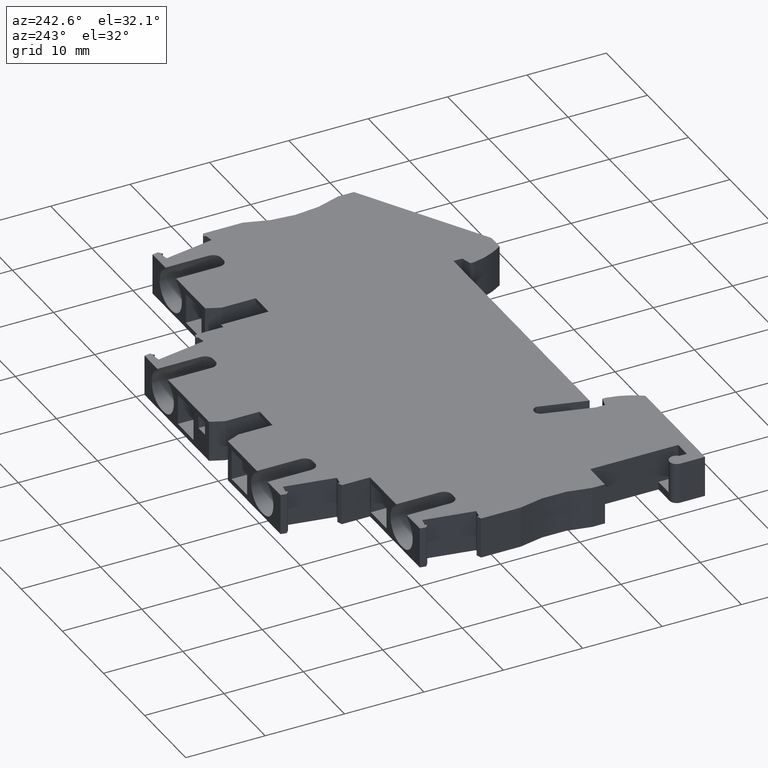
[diagram: clean part render]
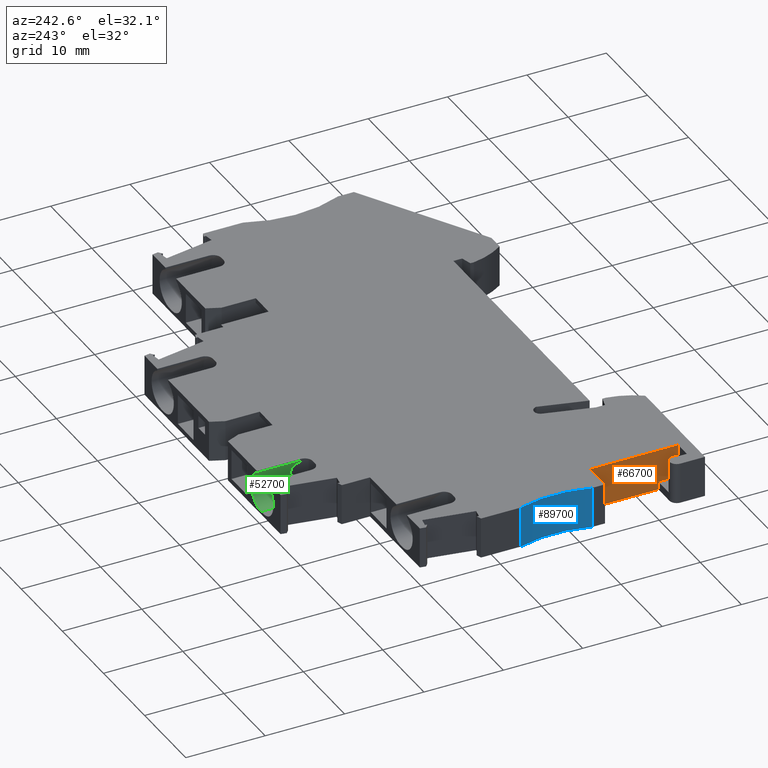
[diagram: same view with three faces highlighted in distinct colors, each labeled with its STEP entity id]
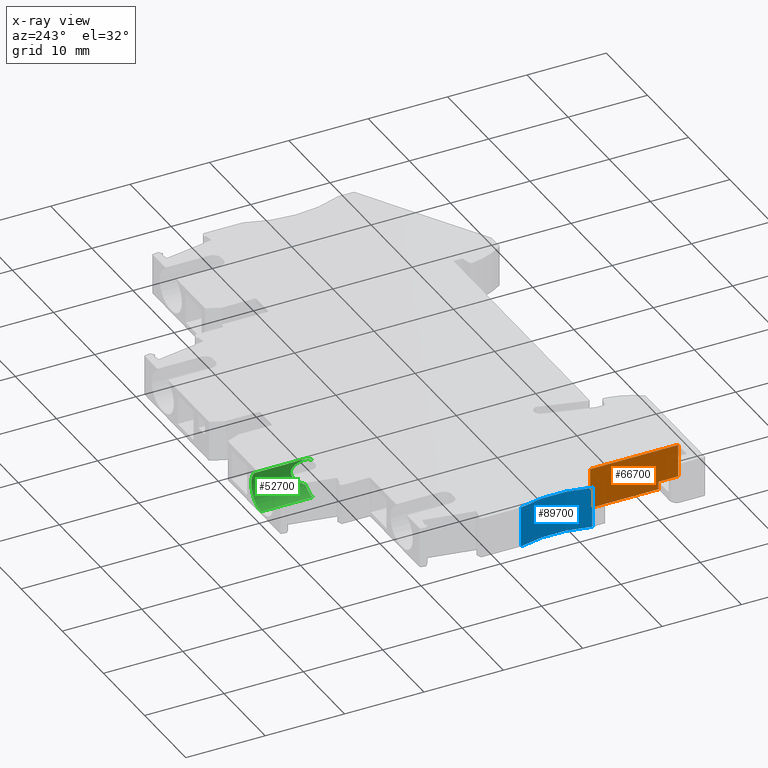
[diagram: x-ray of the same camera — body ghosted, the three highlighted faces saturated]
A machine part, auxiliary view with three faces highlighted in distinct colors.
The next image is the same camera in x-ray (body ghosted, the three faces saturated) — at least one of them is partly hidden behind the body in this view.
Their STEP definitions:

[orange] entity #66700 — the highlighted planar face has unit normal (1, -0, 0).
#5110=CARTESIAN_POINT('',(138.918635451691,9.09671382217083,48.52));
#5120=VERTEX_POINT('',#5110);
#5150=CARTESIAN_POINT('',(138.918635451691,-15.1764489999999,48.52));
#5160=DIRECTION('',(6.93889390390723E-17,1.,0.));
#5170=VECTOR('',#5160,1.);
#5180=LINE('',#5150,#5170);
#5190=CARTESIAN_POINT('',(138.918635451691,0.496713822169898,48.52));
#5200=VERTEX_POINT('',#5190);
#5210=EDGE_CURVE('',#5200,#5120,#5180,.T.);
#65280=CARTESIAN_POINT('',(138.918635451691,0.496713822169898,53.67));
#65290=DIRECTION('',(0.,0.,-1.));
#65300=VECTOR('',#65290,1.);
#65310=LINE('',#65280,#65300);
#65320=CARTESIAN_POINT('',(138.918635451691,0.496713822169898,49.52));
#65330=VERTEX_POINT('',#65320);
#65340=EDGE_CURVE('',#65330,#5200,#65310,.T.);
#65710=CARTESIAN_POINT('',(138.918635451691,-2.00328617783005,49.52));
#65720=VERTEX_POINT('',#65710);
#65910=CARTESIAN_POINT('',(138.918635451691,2.99671382217021,49.52));
#65920=DIRECTION('',(6.93889390390723E-17,1.,0.));
#65930=VECTOR('',#65920,1.);
#65940=LINE('',#65910,#65930);
#65950=EDGE_CURVE('',#65720,#65330,#65940,.T.);
#66120=CARTESIAN_POINT('',(138.918635451691,-2.00328617783005,53.67));
#66130=DIRECTION('',(0.,0.,-1.));
#66140=VECTOR('',#66130,1.);
#66150=LINE('',#66120,#66140);
#66160=CARTESIAN_POINT('',(138.918635451691,-2.00328617783005,53.67));
#66170=VERTEX_POINT('',#66160);
#66180=EDGE_CURVE('',#66170,#65720,#66150,.T.);
#66450=CARTESIAN_POINT('',(138.918635451691,-1.00328617783004,53.67));
#66460=DIRECTION('',(1.,-6.93889390390723E-17,0.));
#66470=DIRECTION('',(-6.93889390390723E-17,-1.,0.));
#66480=AXIS2_PLACEMENT_3D('',#66450,#66460,#66470);
#66490=PLANE('',#66480);
#66500=CARTESIAN_POINT('',(138.918635451691,-15.1764489999999,53.67));
#66510=DIRECTION('',(6.93889390390723E-17,1.,0.));
#66520=VECTOR('',#66510,1.);
#66530=LINE('',#66500,#66520);
#66540=CARTESIAN_POINT('',(138.918635451691,9.09671382217083,53.67));
#66550=VERTEX_POINT('',#66540);
#66560=EDGE_CURVE('',#66170,#66550,#66530,.T.);
#66570=ORIENTED_EDGE('',*,*,#66560,.T.);
#66580=ORIENTED_EDGE('',*,*,#66180,.F.);
#66590=ORIENTED_EDGE('',*,*,#65950,.F.);
#66600=ORIENTED_EDGE('',*,*,#65340,.F.);
#66610=ORIENTED_EDGE('',*,*,#5210,.F.);
#66620=CARTESIAN_POINT('',(138.918635451691,9.09671382217083,53.67));
#66630=DIRECTION('',(0.,0.,-1.));
#66640=VECTOR('',#66630,1.);
#66650=LINE('',#66620,#66640);
#66660=EDGE_CURVE('',#66550,#5120,#66650,.T.);
#66670=ORIENTED_EDGE('',*,*,#66660,.T.);
#66680=EDGE_LOOP('',(#66670,#66610,#66600,#66590,#66580,#66570));
#66690=FACE_OUTER_BOUND('',#66680,.T.);
#66700=ADVANCED_FACE('',(#66690),#66490,.F.);

[blue] entity #89700 — the highlighted cylindrical surface (partial cylindrical patch) has radius 15 mm, axis along (0, 0, 1).
#4860=CARTESIAN_POINT('',(135.318635774393,19.6967137777627,48.52));
#4870=VERTEX_POINT('',#4860);
#4900=CARTESIAN_POINT('',(121.009547739174,15.1967138221689,48.52));
#4910=DIRECTION('',(0.,0.,1.));
#4920=DIRECTION('',(1.,-6.93889390390723E-17,0.));
#4930=AXIS2_PLACEMENT_3D('',#4900,#4910,#4920);
#4940=CIRCLE('',#4930,15.);
#4950=CARTESIAN_POINT('',(135.318635760428,10.696713822169,48.52));
#4960=VERTEX_POINT('',#4950);
#4970=EDGE_CURVE('',#4960,#4870,#4940,.T.);
#66890=CARTESIAN_POINT('',(135.318635760428,10.696713822169,53.67));
#66900=VERTEX_POINT('',#66890);
#67000=CARTESIAN_POINT('',(135.318635760428,10.696713822169,53.67));
#67010=DIRECTION('',(0.,0.,1.));
#67020=VECTOR('',#67010,1.);
#67030=LINE('',#67000,#67020);
#67040=EDGE_CURVE('',#4960,#66900,#67030,.T.);
#67250=CARTESIAN_POINT('',(135.318635774393,19.6967137777627,53.67));
#67260=VERTEX_POINT('',#67250);
#67310=CARTESIAN_POINT('',(135.318635774393,19.6967137777627,53.67));
#67320=DIRECTION('',(0.,0.,1.));
#67330=VECTOR('',#67320,1.);
#67340=LINE('',#67310,#67330);
#67350=EDGE_CURVE('',#4870,#67260,#67340,.T.);
#89530=CARTESIAN_POINT('',(121.009547739174,15.1967138221689,53.67));
#89540=DIRECTION('',(0.,0.,1.));
#89550=DIRECTION('',(1.,-6.93889390390723E-17,0.));
#89560=AXIS2_PLACEMENT_3D('',#89530,#89540,#89550);
#89570=CYLINDRICAL_SURFACE('',#89560,15.);
#89580=CARTESIAN_POINT('',(121.009547739174,15.1967138221689,53.67));
#89590=DIRECTION('',(0.,0.,1.));
#89600=DIRECTION('',(1.,-6.93889390390723E-17,0.));
#89610=AXIS2_PLACEMENT_3D('',#89580,#89590,#89600);
#89620=CIRCLE('',#89610,15.);
#89630=EDGE_CURVE('',#66900,#67260,#89620,.T.);
#89640=ORIENTED_EDGE('',*,*,#89630,.T.);
#89650=ORIENTED_EDGE('',*,*,#67040,.T.);
#89660=ORIENTED_EDGE('',*,*,#4970,.F.);
#89670=ORIENTED_EDGE('',*,*,#67350,.F.);
#89680=EDGE_LOOP('',(#89670,#89660,#89650,#89640));
#89690=FACE_OUTER_BOUND('',#89680,.T.);
#89700=ADVANCED_FACE('',(#89690),#89570,.F.);

[green] entity #52700 — the highlighted cylindrical surface (edge-blend (fillet) strip) has radius 2.4 mm, axis along (-0, -1, 0).
#51160=CARTESIAN_POINT('',(154.743635451665,44.501017822169,51.27));
#51170=DIRECTION('',(-1.17239551400417E-13,-1.,0.));
#51180=DIRECTION('',(-1.,1.17239551400417E-13,0.));
#51190=AXIS2_PLACEMENT_3D('',#51160,#51170,#51180);
#51200=CYLINDRICAL_SURFACE('',#51190,2.4);
#51210=CARTESIAN_POINT('',(154.743635451665,35.8467138221698,51.27));
#51220=DIRECTION('',(-8.67361737981714E-16,-1.,-1.38777878079272E-17));
#51230=DIRECTION('',(-1.,8.67361737981714E-16,1.20370621524251E-32));
#51240=AXIS2_PLACEMENT_3D('',#51210,#51220,#51230);
#51250=CIRCLE('',#51240,2.40000000000014);
#51260=CARTESIAN_POINT('',(156.43152076095,35.8467138221698,
52.9761779457901));
#51270=VERTEX_POINT('',#51260);
#51280=CARTESIAN_POINT('',(154.743635451665,35.8467138221695,53.67));
#51290=VERTEX_POINT('',#51280);
#51300=EDGE_CURVE('',#51270,#51290,#51250,.T.);
#51310=ORIENTED_EDGE('',*,*,#51300,.T.);
#51320=CARTESIAN_POINT('',(154.743635451665,32.2270320953817,51.27));
#51330=DIRECTION('',(0.906307787036651,-0.422618261740698,0.));
#51340=DIRECTION('',(-0.422618261740698,-0.906307787036651,
-3.0624889262629E-17));
#51350=AXIS2_PLACEMENT_3D('',#51320,#51330,#51340);
#51360=ELLIPSE('',#51350,5.67888379956604,2.4);
#51370=CARTESIAN_POINT('',(156.431520760951,35.8467138221698,
49.5638220542103));
#51380=VERTEX_POINT('',#51370);
#51390=EDGE_CURVE('',#51380,#51270,#51360,.T.);
#51400=ORIENTED_EDGE('',*,*,#51390,.T.);
#51410=CARTESIAN_POINT('',(154.743635451665,35.8467138221698,51.27));
#51420=DIRECTION('',(-8.67361737981714E-16,-1.,-1.38777878079272E-17));
#51430=DIRECTION('',(-1.,8.67361737981714E-16,1.20370621524251E-32));
#51440=AXIS2_PLACEMENT_3D('',#51410,#51420,#51430);
#51450=CIRCLE('',#51440,2.40000000000014);
#51460=CARTESIAN_POINT('',(154.743635451665,35.8467138221695,48.87));
#51470=VERTEX_POINT('',#51460);
#51480=EDGE_CURVE('',#51470,#51380,#51450,.T.);
#51490=ORIENTED_EDGE('',*,*,#51480,.T.);
#51500=CARTESIAN_POINT('',(154.743635451666,44.501017822169,48.87));
#51510=DIRECTION('',(-1.17239551400417E-13,-1.,-1.38777878145543E-17));
#51520=VECTOR('',#51510,1.);
#51530=LINE('',#51500,#51520);
#51540=CARTESIAN_POINT('',(154.743635451666,42.3467138221681,48.87));
#51550=VERTEX_POINT('',#51540);
#51560=EDGE_CURVE('',#51550,#51470,#51530,.T.);
#51570=ORIENTED_EDGE('',*,*,#51560,.T.);
#51580=CARTESIAN_POINT('',(154.743635451665,42.3467138221681,51.27));
#51590=DIRECTION('',(1.17239551400417E-13,1.,0.));
#51600=DIRECTION('',(-1.,1.17239551400417E-13,0.));
#51610=AXIS2_PLACEMENT_3D('',#51580,#51590,#51600);
#51620=CIRCLE('',#51610,2.4);
#51630=CARTESIAN_POINT('',(155.743635451665,42.346713822168,
53.4517424229271));
#51640=VERTEX_POINT('',#51630);
#51650=EDGE_CURVE('',#51640,#51550,#51620,.T.);
#51660=ORIENTED_EDGE('',*,*,#51650,.T.);
#51670=CARTESIAN_POINT('',(155.743635451665,44.5010178221691,
53.4517424229274));
#51680=DIRECTION('',(-1.73472347596343E-15,-1.,-2.77555756158543E-17));
#51690=VECTOR('',#51680,1.);
#51700=LINE('',#51670,#51690);
#51710=CARTESIAN_POINT('',(155.743635451665,36.8467138221695,
53.4517424229274));
#51720=VERTEX_POINT('',#51710);
#51730=EDGE_CURVE('',#51640,#51720,#51700,.T.);
#51740=ORIENTED_EDGE('',*,*,#51730,.F.);
#51750=CARTESIAN_POINT('',(154.743635451665,36.8467138221694,53.67));
#51760=DIRECTION('',(0.,0.,1.));
#51770=DIRECTION('',(1.,0.,0.));
#51780=AXIS2_PLACEMENT_3D('',#51750,#51760,#51770);
#51790=CYLINDRICAL_SURFACE('',#51780,1.);
#51800=CARTESIAN_POINT('',(154.743635451665,44.5010178221691,51.27));
#51810=DIRECTION('',(-1.73472347596343E-15,-1.,-2.77555756158543E-17));
#51820=DIRECTION('',(-1.,1.73472347596345E-15,-1.15490950136632E-13));
#51830=AXIS2_PLACEMENT_3D('',#51800,#51810,#51820);
#51840=CYLINDRICAL_SURFACE('',#51830,2.4);
#51850=CARTESIAN_POINT('',(154.743635451664,35.8467138221694,53.67));
#51860=CARTESIAN_POINT('',(154.760156884749,35.8467138221694,53.67));
#51870=CARTESIAN_POINT('',(154.776669937245,35.8471235838915,
53.6698291800724));
#51880=CARTESIAN_POINT('',(154.79313976741,35.8479399124568,
53.6694893879163));
#51890=CARTESIAN_POINT('',(154.809609328791,35.8487562276998,
53.6691496013055));
#51900=CARTESIAN_POINT('',(154.826075702635,35.8499810679911,
53.6686400266826));
#51910=CARTESIAN_POINT('',(154.842504754398,35.8516133945858,
53.6679626479529));
#51920=CARTESIAN_POINT('',(154.858933777927,35.8532457183754,
53.6672852703873));
#51930=CARTESIAN_POINT('',(154.87532511371,35.8552855018436,
53.6664401028));
#51940=CARTESIAN_POINT('',(154.89164432527,35.8577277892377,
53.665431771797));
#51950=CARTESIAN_POINT('',(154.907963542039,35.8601700774113,
53.6644234404721));
#51960=CARTESIAN_POINT('',(154.924210280177,35.8630148124851,
53.6632519751285));
#51970=CARTESIAN_POINT('',(154.940351006814,35.8662532210424,
53.661924536929));
#51980=CARTESIAN_POINT('',(154.956497128741,35.8694927120884,
53.6605966550124));
#51990=CARTESIAN_POINT('',(154.972512547157,35.8731198876311,
53.6591152427836));
#52000=CARTESIAN_POINT('',(154.988440534368,35.8771415084752,
53.657482035845));
#52010=CARTESIAN_POINT('',(155.004369480411,35.8811633714123,
53.6558487305909));
#52020=CARTESIAN_POINT('',(155.020204958533,35.8855794703683,
53.654063736291));
#52030=CARTESIAN_POINT('',(155.035917190215,35.8903815654145,
53.652135887247));
#52040=CARTESIAN_POINT('',(155.051629396176,35.8951836525994,
53.6502080413591));
#52050=CARTESIAN_POINT('',(155.067218078864,35.9003716591885,
53.6481373803281));
#52060=CARTESIAN_POINT('',(155.082653922186,35.9059341047828,
53.6459348637213));
#52070=CARTESIAN_POINT('',(155.098089764844,35.911496550138,
53.6437323472091));
#52080=CARTESIAN_POINT('',(155.113372508668,35.9174333383913,
53.6413980240069));
#52090=CARTESIAN_POINT('',(155.128474195386,35.9237299971046,
53.6389447315908));
#52100=CARTESIAN_POINT('',(155.143575903959,35.930026664931,
53.636491435624));
#52110=CARTESIAN_POINT('',(155.158496320103,35.9366830928664,
53.6339192256293));
#52120=CARTESIAN_POINT('',(155.173209596391,35.943682231259,
53.631242481022));
#52130=CARTESIAN_POINT('',(155.187922331244,35.9506811120896,
53.6285658349165));
#52140=CARTESIAN_POINT('',(155.202419566706,35.958016911356,
53.6257867440488));
#52150=CARTESIAN_POINT('',(155.216762828779,35.9657197898258,
53.6229025659865));
#52160=CARTESIAN_POINT('',(155.245438194515,35.9811195542742,
53.6171364536218));
#52170=CARTESIAN_POINT('',(155.273386682759,35.9979360939353,
53.6109691613471));
#52180=CARTESIAN_POINT('',(155.300430665412,36.0160640223417,
53.6045190275403));
#52190=CARTESIAN_POINT('',(155.327474482828,36.0341918399873,
53.5980689331436));
#52200=CARTESIAN_POINT('',(155.353609246036,36.0536280747606,
53.5913374690135));
#52210=CARTESIAN_POINT('',(155.378676526955,36.0742354517953,
53.5844595120015));
#52220=CARTESIAN_POINT('',(155.403744005275,36.0948429911095,
53.5775815008268));
#52230=CARTESIAN_POINT('',(155.427740334169,36.1166183553183,
53.5705585460432));
#52240=CARTESIAN_POINT('',(155.450538147453,36.1394030144706,
53.5635319005169));
#52250=CARTESIAN_POINT('',(155.473333761347,36.1621854755031,
53.5565059328769));
#52260=CARTESIAN_POINT('',(155.495110135297,36.1861558156452,
53.5494208324382));
#52270=CARTESIAN_POINT('',(155.515714150973,36.2111868895578,
53.5424204017029));
#52280=CARTESIAN_POINT('',(155.536317990912,36.2362177499738,
53.5354200306761));
#52290=CARTESIAN_POINT('',(155.555746406249,36.2623058809807,
53.528505880485));
#52300=CARTESIAN_POINT('',(155.57386758062,36.2892960147299,
53.5218247294254));
#52310=CARTESIAN_POINT('',(155.591988848248,36.3162862873798,
53.5151435439823));
#52320=CARTESIAN_POINT('',(155.608800262459,36.3441745109321,
53.5086969213532));
#52330=CARTESIAN_POINT('',(155.624200358253,36.3727882528184,
53.5026229966759));
#52340=CARTESIAN_POINT('',(155.631904032613,36.387101861815,
53.4995846040304));
#52350=CARTESIAN_POINT('',(155.639239614574,36.4015645138109,
53.4966455302614));
#52360=CARTESIAN_POINT('',(155.646243395418,36.4162502350073,
53.4938028014808));
#52370=CARTESIAN_POINT('',(155.653248084492,36.4309378606047,
53.4909597040635));
#52380=CARTESIAN_POINT('',(155.659916599928,36.4458438724246,
53.4882145144064));
#52390=CARTESIAN_POINT('',(155.666230275017,36.4609434346021,
53.485585428713));
#52400=CARTESIAN_POINT('',(155.6725439311,36.4760429513269,
53.4829563509336));
#52410=CARTESIAN_POINT('',(155.678502630154,36.4913357927839,
53.4804434488256));
#52420=CARTESIAN_POINT('',(155.684089992393,36.5067943363732,
53.4780636894857));
#52430=CARTESIAN_POINT('',(155.689677346213,36.5222528566703,
53.4756839337316));
#52440=CARTESIAN_POINT('',(155.694893255493,36.5378768181779,
53.4734373898217));
#52450=CARTESIAN_POINT('',(155.699724183706,36.5536364664034,
53.4713392143112));
#52460=CARTESIAN_POINT('',(155.704555112281,36.5693961158081,
53.4692410386437));
#52470=CARTESIAN_POINT('',(155.709000966423,36.5852911588895,
53.4672912934101));
#52480=CARTESIAN_POINT('',(155.71305146199,36.6012905165835,
53.4655028123248));
#52490=CARTESIAN_POINT('',(155.717101964904,36.6172899032991,
53.4637143279954));
#52500=CARTESIAN_POINT('',(155.720757036551,36.6333932863067,
53.4620871580589));
#52510=CARTESIAN_POINT('',(155.724009878263,36.6495692466104,
53.4606314120988));
#52520=CARTESIAN_POINT('',(155.727262732279,36.6657452680993,
53.4591756606323));
#52530=CARTESIAN_POINT('',(155.730113310887,36.6819935348409,
53.4578913670179));
#52540=CARTESIAN_POINT('',(155.732558314378,36.6982834627348,
53.4567856711629));
#52550=CARTESIAN_POINT('',(155.735002038377,36.7145648659571,
53.4556805539288));
#52560=CARTESIAN_POINT('',(155.737045368705,36.7309118065182,
53.4547517010195));
#52570=CARTESIAN_POINT('',(155.738688010922,36.7473639136872,
53.4540032976891));
#52580=CARTESIAN_POINT('',(155.740330063121,36.7638101114547,
53.4532551631763));
#52590=CARTESIAN_POINT('',(155.741567942573,36.7803360340741,
53.4526890684409));
#52600=CARTESIAN_POINT('',(155.742394302707,36.7969066192314,
53.4523108755322));
#52610=CARTESIAN_POINT('',(155.743220659911,36.8134771456505,
53.4519326839641));
#52620=CARTESIAN_POINT('',(155.743635451665,36.8300919034459,
53.4517424229275));
#52630=CARTESIAN_POINT('',(155.743635451665,36.8467138221693,
53.4517424229275));
#52640=B_SPLINE_CURVE_WITH_KNOTS('',3,(#51850,#51860,#51870,#51880,
#51890,#51900,#51910,#51920,#51930,#51940,#51950,#51960,#51970,#51980,
#51990,#52000,#52010,#52020,#52030,#52040,#52050,#52060,#52070,#52080,
#52090,#52100,#52110,#52120,#52130,#52140,#52150,#52160,#52170,#52180,
#52190,#52200,#52210,#52220,#52230,#52240,#52250,#52260,#52270,#52280,
#52290,#52300,#52310,#52320,#52330,#52340,#52350,#52360,#52370,#52380,
#52390,#52400,#52410,#52420,#52430,#52440,#52450,#52460,#52470,#52480,
#52490,#52500,#52510,#52520,#52530,#52540,#52550,#52560,#52570,#52580,
#52590,#52600,#52610,#52620,#52630),.UNSPECIFIED.,.F.,.F.,(4,3,3,3,3,3,3
,3,3,3,3,3,3,3,3,3,3,3,3,3,3,3,3,3,3,3,4),(0.,0.0495280659790585,
0.0990589953840471,0.14864802617325,0.198225240294133,0.247737429567432,
0.297320385403706,0.346971204512858,0.39662589711012,0.446216142963187,
0.495739848103408,0.595141697680494,0.694722830418202,0.794001668465125,
0.893268534081485,0.992840747784768,1.09224322139269,1.14177234334136,
1.19142111106459,1.24120453794257,1.29104817767177,1.34087949602086,
1.39063123962345,1.44024504200518,1.48979099530394,1.53950711074836,
1.58933925073471),.UNSPECIFIED.);
#52650=SURFACE_CURVE('',#52640,(#51790,#51840),.CURVE_3D.);
#52660=EDGE_CURVE('',#51290,#51720,#52650,.T.);
#52670=ORIENTED_EDGE('',*,*,#52660,.T.);
#52680=EDGE_LOOP('',(#52670,#51740,#51660,#51570,#51490,#51400,#51310));
#52690=FACE_OUTER_BOUND('',#52680,.T.);
#52700=ADVANCED_FACE('',(#52690),#51200,.F.);